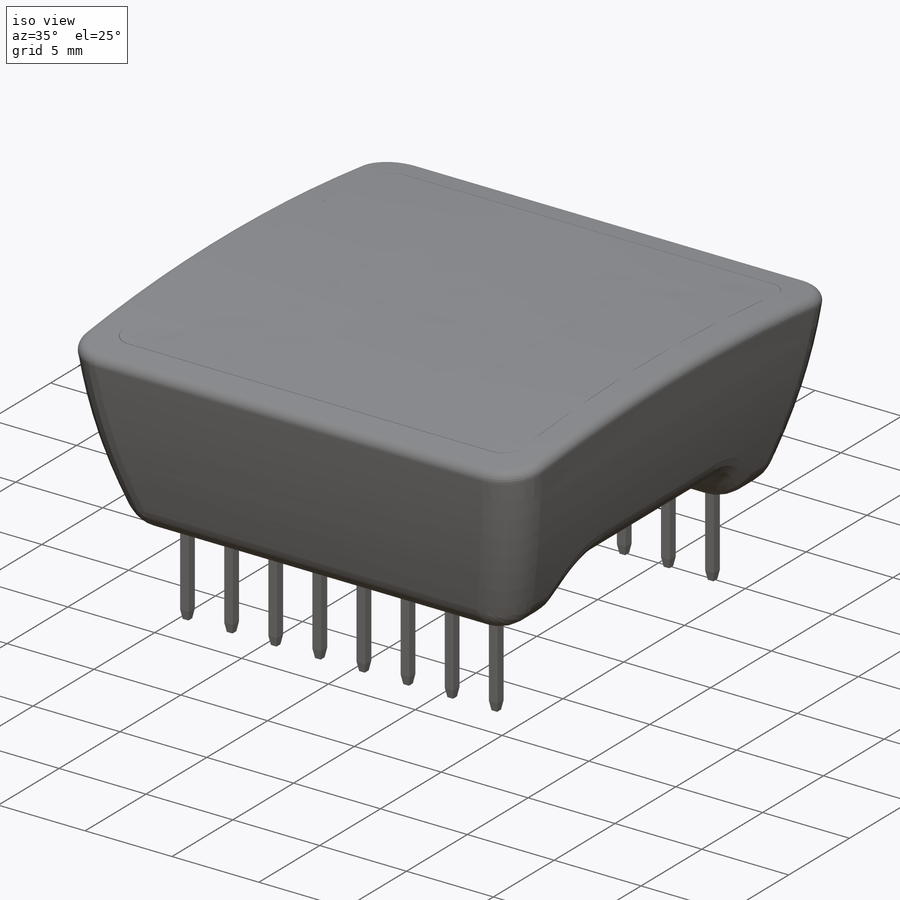
[diagram: iso view]
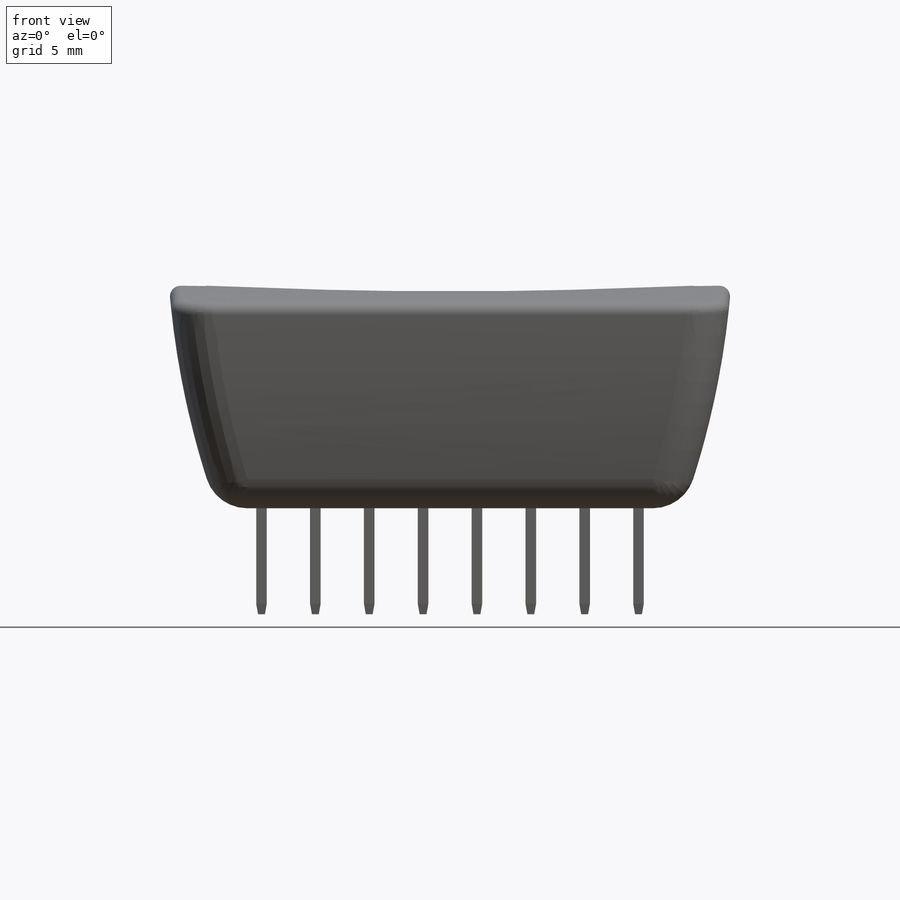
[diagram: front view]
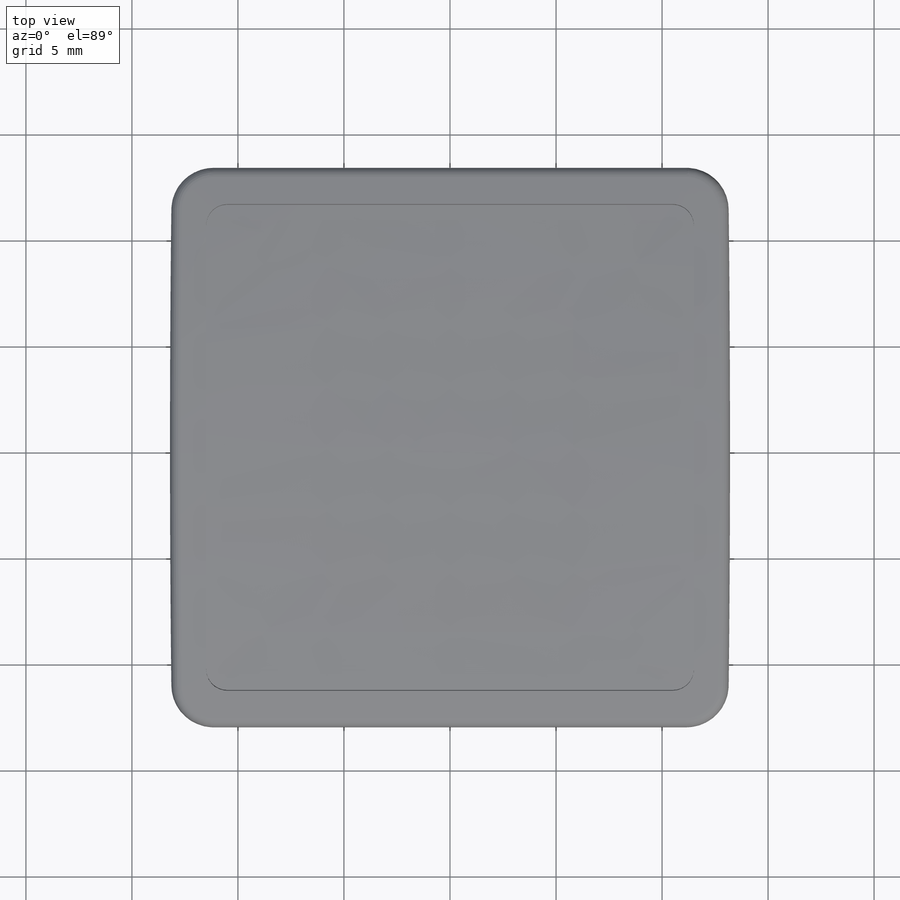
[diagram: top view]
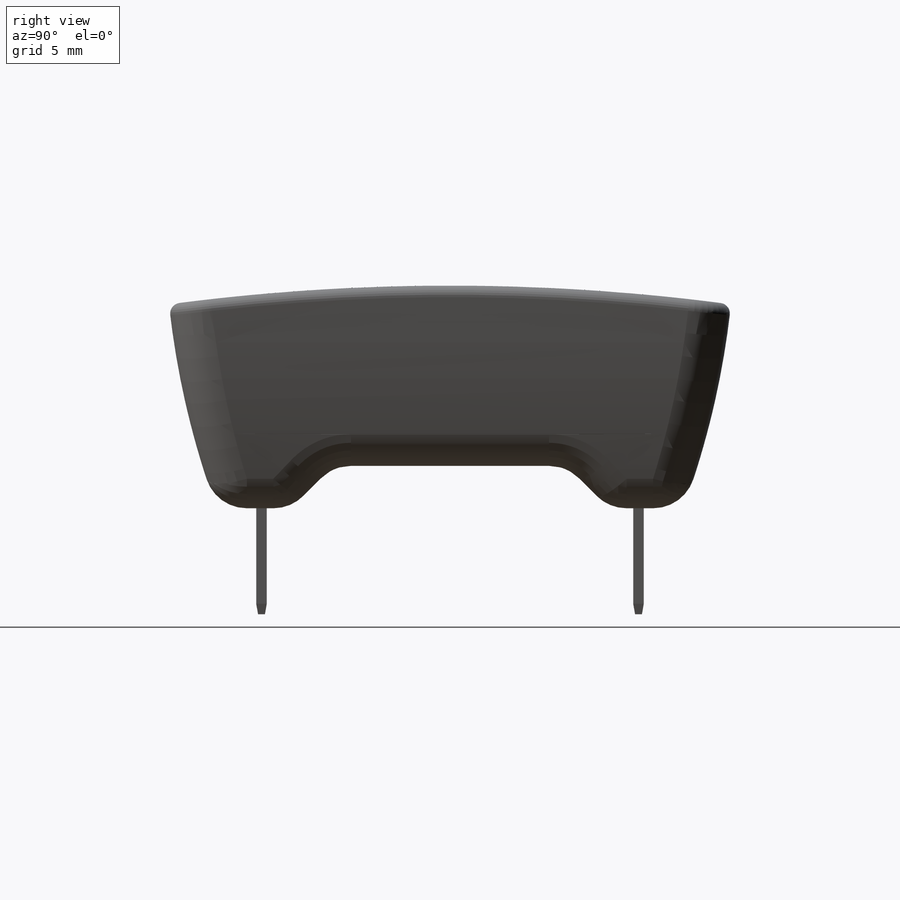
[diagram: right view]
SOLIDWORKS PART (.sldprt)
format: sldprt  version: not decoded by parser v0  size: 1,224,704 bytes
history: native  units: mm
features: sketch x10, fillet x5, extrude x4, cut_extrude x3, pattern_linear x3, material x1 (+16 scaffold rows collapsed)
feature tree (42):
  scaffold x16  (default folders/planes/origin — collapsed)
  material  "Material <not specified>"
  sketch  "Sketch1"  dims[D1=26.5mm D2=26.5mm]
  extrude  "Boss-Extrude1"  Depth=10.5mm
  sketch  "Sketch2"  dims[c1.D1=100.0mm c1.D2=75.0mm c1.D3=40.0mm c2.D2=22.0mm]
  cut_extrude  "Cut-Extrude1"  [1 undecoded]
  sketch  "Sketch5"  dims[D3=40.0mm D1=22.0mm D2=11.0mm]
  cut_extrude  "Cut-Extrude2"  [1 undecoded]
  sketch  "Sketch6"  dims[D1=15.0mm D2=2.0mm]
  cut_extrude  "Cut-Extrude3"  [1 undecoded]
  fillet  "Fillet1"  Radius=2mm
  fillet  "Fillet2"  Radius=2mm
  fillet  "Fillet3"  Radius=0.5mm
  sketch  "Sketch8"  dims[D1=8.89mm D2=0.5mm D3=8.89mm]
  extrude  "Boss-Extrude2"  Depth=4.5mm
  sketch  "Sketch9"  dims[D1=0.0mm]
  extrude  "Boss-Extrude3"  Depth=0.5mm
  pattern_linear  "LPattern1"  Count1=8 Spacing1=2.54mm Spacing2=17.78mm
  sketch  "Sketch10"  dims[c1.D6=0.5mm c1.D7=0.4mm c1.D10=0.65mm c1.D12=0.4mm c1.D15=1.5mm c1.D1=~9.279887mm c1.D2=2.23mm c1.D3=1.3mm c1.D4=0.9mm c1.D5=1.3mm c1.D8=1.7mm c1.D9=1.0mm c1.D11=2.5mm c1.D13=2.9mm c1.D14=2.24mm c2.D1=0.1mm]
  fillet  "Fillet4"  Radius=0.1mm
  fillet  "Fillet5"  Radius=0.025mm
  sketch  "Sketch12"  dims[D3=1.0mm D1=23.0mm D2=23.0mm]
  pattern_linear  "Wrap2"  Spacing1=0.25mm  [1 undecoded]
  sketch  "Sketch13"  dims[D1=16.0mm D2=12.0mm D3=3.0mm]
  sketch  "Sketch14"  dims[D1=0.0mm]
  extrude  "Boss-Extrude4"  Depth=0.25mm
  pattern_linear  "Wrap4"  [2 undecoded]
decode coverage: 21 of 25 modeling features carry decoded parameters
note: ~ marks probable driven/reference dimensions
note: 6 parameter values undecoded
summary: no parameter record found for 3 features
note: suppression state not decoded; provenance and decode notes live in map.json
